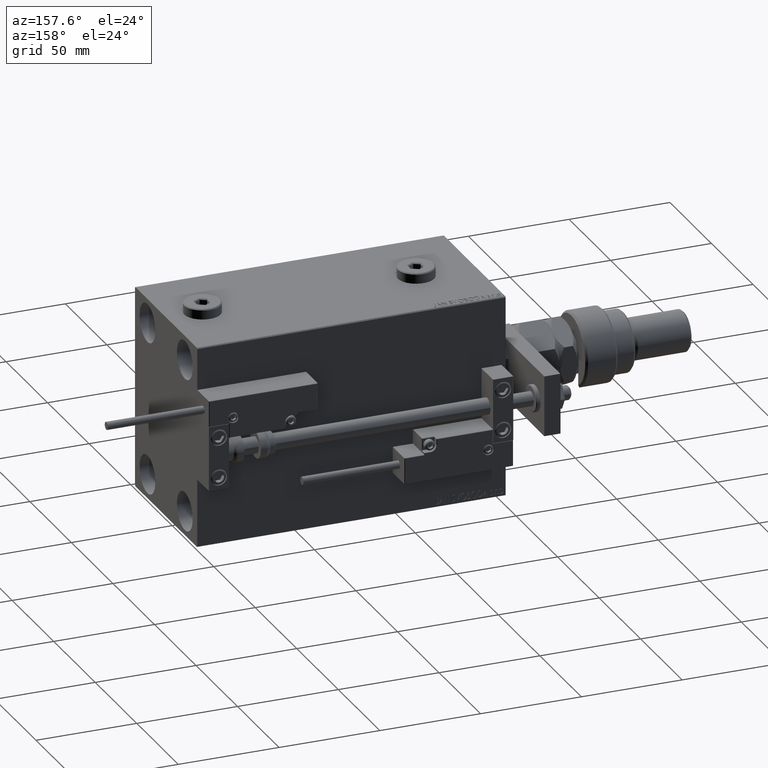
[diagram: clean part render]
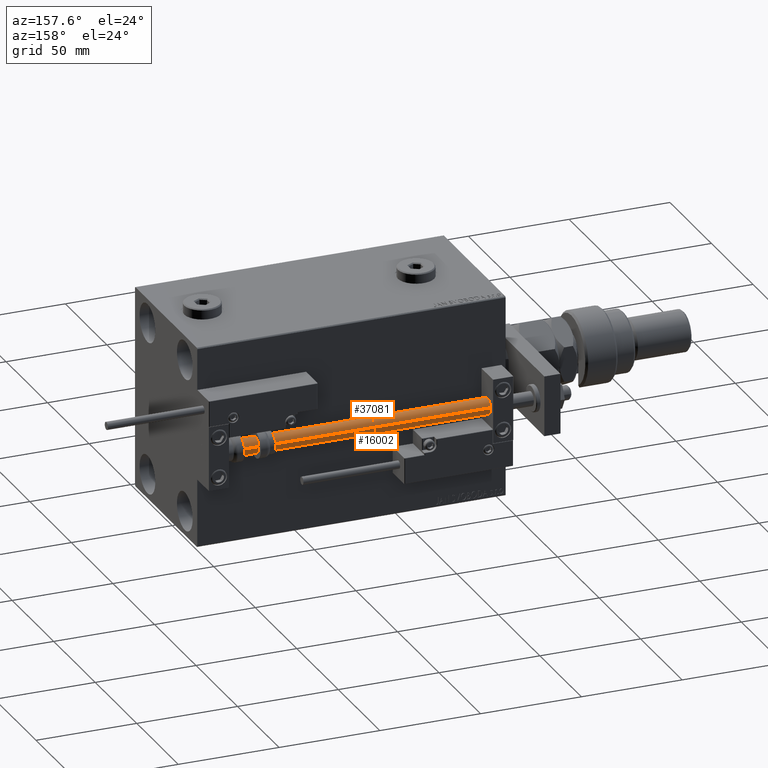
[diagram: same view with one multi-face feature highlighted, each face labeled with its STEP entity id]
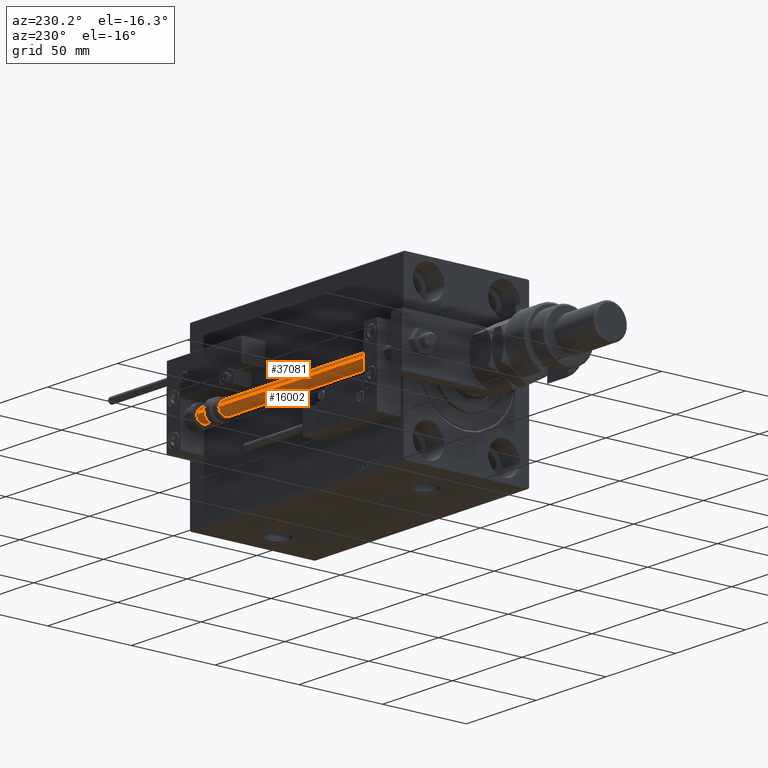
[diagram: same view with one multi-face feature highlighted, each face labeled with its STEP entity id]
A machine part, auxiliary view. The highlighted faces form ONE feature: a constant-radius fillet chain: 2 tangent blend faces with common blend radius 4 mm. The faces share edges in the B-rep.
A second angle (auxiliary view) of the same feature is appended — it is thin or edge-on in the first view.
Their STEP definitions:
[1] entity #37081 (Cylinder):
#386 = CARTESIAN_POINT ( 'NONE',  ( 0.000000000000000000, 0.000000000000000000, 2.000000000000029310 ) ) ;
#4240 = DIRECTION ( 'NONE',  ( -0.000000000000000000, -0.000000000000000000, 1.000000000000000000 ) ) ;
#5402 = CARTESIAN_POINT ( 'NONE',  ( -4.000000000000000000, 0.000000000000000000, 153.0000000000000000 ) ) ;
#7009 = DIRECTION ( 'NONE',  ( -1.000000000000000000, 0.000000000000000000, 0.000000000000000000 ) ) ;
#8147 = VERTEX_POINT ( 'NONE', #5402 ) ;
#8310 = ORIENTED_EDGE ( 'NONE', *, *, #48972, .F. ) ;
#10658 = ORIENTED_EDGE ( 'NONE', *, *, #50168, .T. ) ;
#12953 = CARTESIAN_POINT ( 'NONE',  ( 4.000000000000000000, 4.898587196589412829E-16, 2.000000000000029310 ) ) ;
#15285 = DIRECTION ( 'NONE',  ( -0.000000000000000000, -0.000000000000000000, -1.000000000000000000 ) ) ;
#17988 = CARTESIAN_POINT ( 'NONE',  ( 4.000000000000000000, 4.898587196589412829E-16, 153.0000000000000000 ) ) ;
#19933 = CIRCLE ( 'NONE', #20821, 4.000000000000000000 ) ;
#20821 = AXIS2_PLACEMENT_3D ( 'NONE', #386, #4240, #34260 ) ;
#23953 = CARTESIAN_POINT ( 'NONE',  ( -4.000000000000000000, 0.000000000000000000, 153.0000000000000000 ) ) ;
#25187 = EDGE_LOOP ( 'NONE', ( #34377, #30905, #10658, #8310 ) ) ;
#26272 = LINE ( 'NONE', #17988, #31008 ) ;
#26466 = CIRCLE ( 'NONE', #37908, 4.000000000000000000 ) ;
#27311 = CARTESIAN_POINT ( 'NONE',  ( -4.000000000000000000, 0.000000000000000000, 2.000000000000029310 ) ) ;
#29644 = DIRECTION ( 'NONE',  ( 0.000000000000000000, 0.000000000000000000, 1.000000000000000000 ) ) ;
#30905 = ORIENTED_EDGE ( 'NONE', *, *, #41620, .T. ) ;
#31008 = VECTOR ( 'NONE', #34775, 1000.000000000000000 ) ;
#32362 = CARTESIAN_POINT ( 'NONE',  ( 0.000000000000000000, 0.000000000000000000, 153.0000000000000000 ) ) ;
#32688 = CARTESIAN_POINT ( 'NONE',  ( 0.000000000000000000, 0.000000000000000000, 153.0000000000000000 ) ) ;
#34260 = DIRECTION ( 'NONE',  ( 1.000000000000000000, 0.000000000000000000, 0.000000000000000000 ) ) ;
#34377 = ORIENTED_EDGE ( 'NONE', *, *, #34753, .F. ) ;
#34753 = EDGE_CURVE ( 'NONE', #44953, #8147, #26466, .T. ) ;
#34775 = DIRECTION ( 'NONE',  ( -0.000000000000000000, -0.000000000000000000, -1.000000000000000000 ) ) ;
#36208 = CYLINDRICAL_SURFACE ( 'NONE', #41523, 4.000000000000000000 ) ;
#37081 = ADVANCED_FACE ( 'NONE', ( #45871 ), #36208, .T. ) ;
#37908 = AXIS2_PLACEMENT_3D ( 'NONE', #32688, #29644, #42035 ) ;
#39924 = DIRECTION ( 'NONE',  ( -0.000000000000000000, -0.000000000000000000, -1.000000000000000000 ) ) ;
#41523 = AXIS2_PLACEMENT_3D ( 'NONE', #32362, #15285, #7009 ) ;
#41620 = EDGE_CURVE ( 'NONE', #44953, #52056, #26272, .T. ) ;
#42035 = DIRECTION ( 'NONE',  ( 1.000000000000000000, 0.000000000000000000, 0.000000000000000000 ) ) ;
#43019 = CARTESIAN_POINT ( 'NONE',  ( 4.000000000000000000, 4.898587196589412829E-16, 153.0000000000000000 ) ) ;
#44953 = VERTEX_POINT ( 'NONE', #43019 ) ;
#45871 = FACE_OUTER_BOUND ( 'NONE', #25187, .T. ) ;
#48972 = EDGE_CURVE ( 'NONE', #8147, #51363, #52892, .T. ) ;
#50168 = EDGE_CURVE ( 'NONE', #52056, #51363, #19933, .T. ) ;
#51363 = VERTEX_POINT ( 'NONE', #27311 ) ;
#52056 = VERTEX_POINT ( 'NONE', #12953 ) ;
#52892 = LINE ( 'NONE', #23953, #54214 ) ;
#54214 = VECTOR ( 'NONE', #39924, 1000.000000000000000 ) ;
[2] entity #16002 (Cylinder):
#5402 = CARTESIAN_POINT ( 'NONE',  ( -4.000000000000000000, 0.000000000000000000, 153.0000000000000000 ) ) ;
#5650 = ORIENTED_EDGE ( 'NONE', *, *, #41620, .F. ) ;
#8147 = VERTEX_POINT ( 'NONE', #5402 ) ;
#10344 = ORIENTED_EDGE ( 'NONE', *, *, #48972, .T. ) ;
#11517 = CIRCLE ( 'NONE', #26490, 4.000000000000000000 ) ;
#12953 = CARTESIAN_POINT ( 'NONE',  ( 4.000000000000000000, 4.898587196589412829E-16, 2.000000000000029310 ) ) ;
#13012 = CARTESIAN_POINT ( 'NONE',  ( 0.000000000000000000, 0.000000000000000000, 2.000000000000029310 ) ) ;
#13504 = EDGE_CURVE ( 'NONE', #51363, #52056, #11517, .T. ) ;
#13815 = DIRECTION ( 'NONE',  ( 1.000000000000000000, 0.000000000000000000, 0.000000000000000000 ) ) ;
#16002 = ADVANCED_FACE ( 'NONE', ( #49450 ), #53587, .T. ) ;
#16159 = CARTESIAN_POINT ( 'NONE',  ( 0.000000000000000000, 0.000000000000000000, 153.0000000000000000 ) ) ;
#17988 = CARTESIAN_POINT ( 'NONE',  ( 4.000000000000000000, 4.898587196589412829E-16, 153.0000000000000000 ) ) ;
#23953 = CARTESIAN_POINT ( 'NONE',  ( -4.000000000000000000, 0.000000000000000000, 153.0000000000000000 ) ) ;
#24729 = EDGE_LOOP ( 'NONE', ( #5650, #33888, #10344, #52638 ) ) ;
#26272 = LINE ( 'NONE', #17988, #31008 ) ;
#26490 = AXIS2_PLACEMENT_3D ( 'NONE', #13012, #51581, #13815 ) ;
#27311 = CARTESIAN_POINT ( 'NONE',  ( -4.000000000000000000, 0.000000000000000000, 2.000000000000029310 ) ) ;
#28242 = DIRECTION ( 'NONE',  ( -1.000000000000000000, 0.000000000000000000, 0.000000000000000000 ) ) ;
#31008 = VECTOR ( 'NONE', #34775, 1000.000000000000000 ) ;
#33179 = DIRECTION ( 'NONE',  ( -0.000000000000000000, -0.000000000000000000, -1.000000000000000000 ) ) ;
#33888 = ORIENTED_EDGE ( 'NONE', *, *, #34756, .F. ) ;
#34756 = EDGE_CURVE ( 'NONE', #8147, #44953, #39659, .T. ) ;
#34775 = DIRECTION ( 'NONE',  ( -0.000000000000000000, -0.000000000000000000, -1.000000000000000000 ) ) ;
#37084 = DIRECTION ( 'NONE',  ( 1.000000000000000000, 0.000000000000000000, 0.000000000000000000 ) ) ;
#39659 = CIRCLE ( 'NONE', #53733, 4.000000000000000000 ) ;
#39924 = DIRECTION ( 'NONE',  ( -0.000000000000000000, -0.000000000000000000, -1.000000000000000000 ) ) ;
#41620 = EDGE_CURVE ( 'NONE', #44953, #52056, #26272, .T. ) ;
#43019 = CARTESIAN_POINT ( 'NONE',  ( 4.000000000000000000, 4.898587196589412829E-16, 153.0000000000000000 ) ) ;
#44953 = VERTEX_POINT ( 'NONE', #43019 ) ;
#45079 = AXIS2_PLACEMENT_3D ( 'NONE', #54134, #33179, #28242 ) ;
#48972 = EDGE_CURVE ( 'NONE', #8147, #51363, #52892, .T. ) ;
#49450 = FACE_OUTER_BOUND ( 'NONE', #24729, .T. ) ;
#49769 = DIRECTION ( 'NONE',  ( 0.000000000000000000, 0.000000000000000000, 1.000000000000000000 ) ) ;
#51363 = VERTEX_POINT ( 'NONE', #27311 ) ;
#51581 = DIRECTION ( 'NONE',  ( -0.000000000000000000, -0.000000000000000000, 1.000000000000000000 ) ) ;
#52056 = VERTEX_POINT ( 'NONE', #12953 ) ;
#52638 = ORIENTED_EDGE ( 'NONE', *, *, #13504, .T. ) ;
#52892 = LINE ( 'NONE', #23953, #54214 ) ;
#53587 = CYLINDRICAL_SURFACE ( 'NONE', #45079, 4.000000000000000000 ) ;
#53733 = AXIS2_PLACEMENT_3D ( 'NONE', #16159, #49769, #37084 ) ;
#54134 = CARTESIAN_POINT ( 'NONE',  ( 0.000000000000000000, 0.000000000000000000, 153.0000000000000000 ) ) ;
#54214 = VECTOR ( 'NONE', #39924, 1000.000000000000000 ) ;